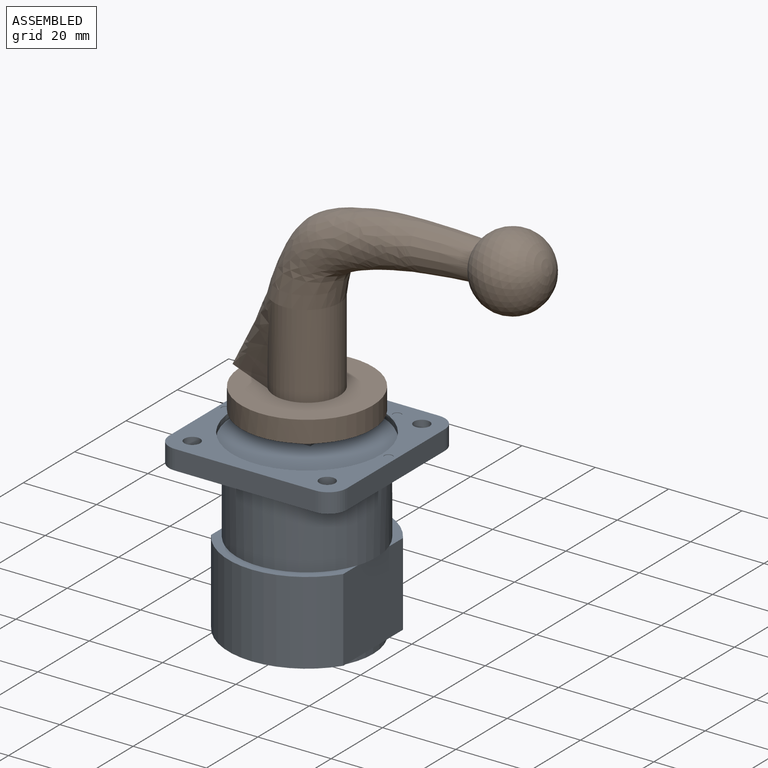
[diagram: assembled view]
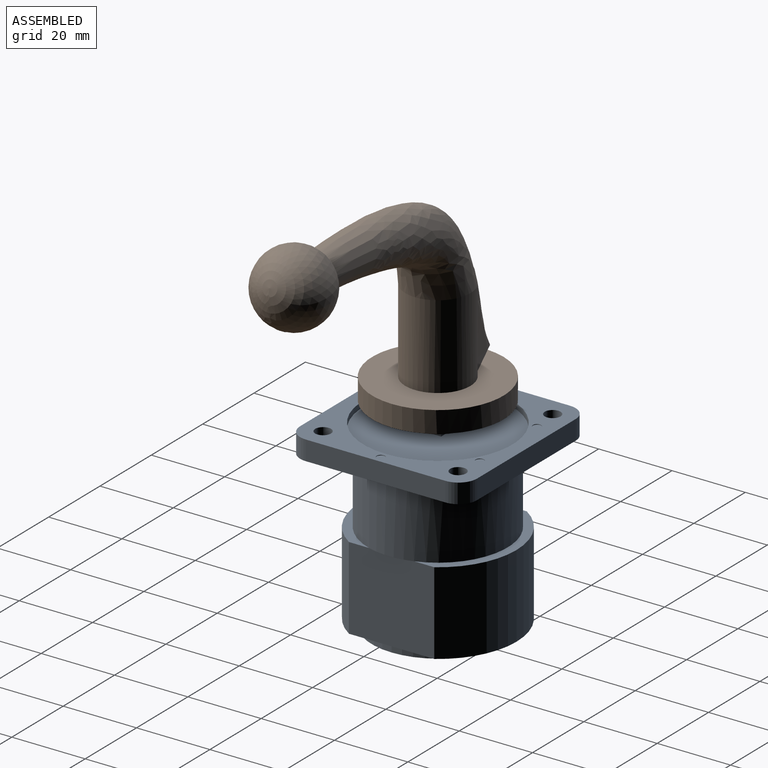
[diagram: assembled view, second angle]
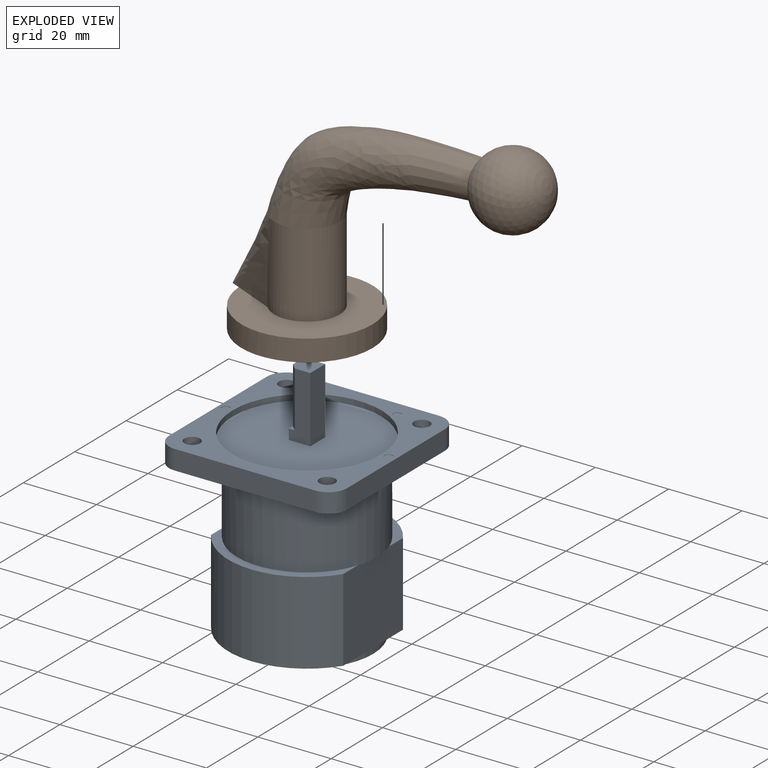
[diagram: exploded view]
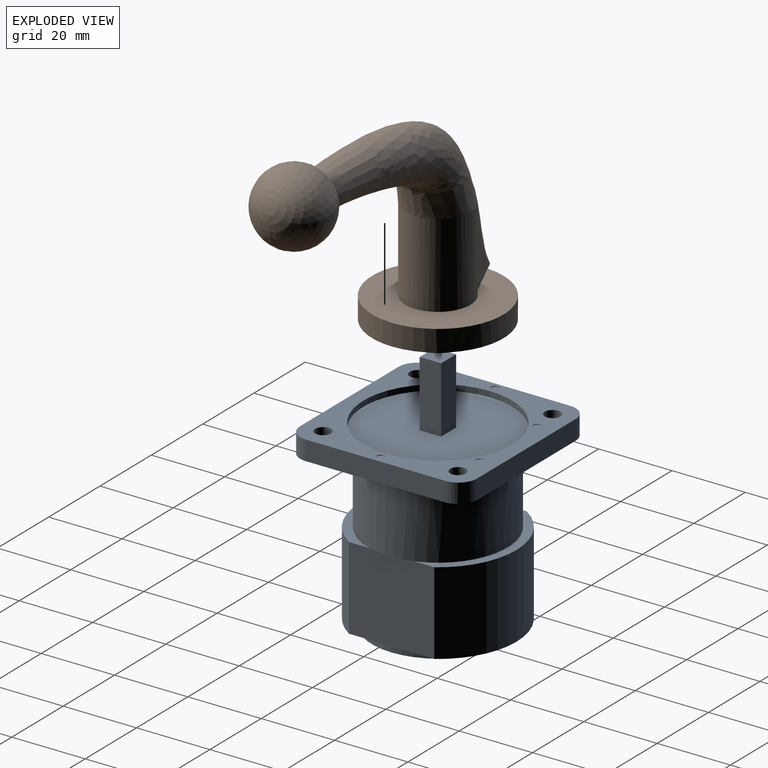
[diagram: exploded view, second angle]
ASSEMBLY  parts=2 mates=4
PART A: 48 faces, bbox 48.5x48.3x66.3 mm
  f0: plane 18.03x5.84mm, normal (0,-1,0), area 80.7mm2, adj f1,f26,f27,f29,f30,f31
  f1: plane 5.84x5.84mm, normal (0,0,1), area 32.8mm2, adj f0,f27,f28,f29,f30
  f2: plane 36.07x21.46mm, normal (0,0,-1), area 158.6mm2, adj f14,f16,f17,f20
  f3: plane 12.28x1.02mm, normal (0,0,-1), area 8.4mm2, adj f10,f14
  f4: plane 38.1x5.33mm, normal (1,0,0), area 203.2mm2, adj f8,f9,f44,f47
  f5: plane 38.35x5.33mm, normal (0,1,0), area 204.6mm2, adj f8,f9,f44,f45
  f6: plane 38.1x5.33mm, normal (-1,0,0), area 203.2mm2, adj f8,f9,f45,f46
  f7: plane 38.35x5.33mm, normal (0,-1,0), area 204.6mm2, adj f8,f9,f46,f47
  f8: plane 48.51x48.26mm, normal (0,0,1), area 947mm2, adj f4,f5,f6,f7,f25,f32,f34,f36
  f9: plane 48.51x48.26mm, normal (0,0,-1), area 1120.5mm2, adj f4,f5,f6,f7,f10,f40,f41,f42
  f10: cylinder r=19.05mm len=38.1mm, axis (0,0,1), area 2432.2mm2, adj f3,f9,f11,f12,f13
  f11: plane 12.28x1.02mm, normal (0,0,-1), area 8.4mm2, adj f10,f16
  f12: plane 36.07x15.33mm, normal (0,0,1), area 107.8mm2, adj f10,f14,f16,f17
  f13: plane 36.07x15.33mm, normal (0,0,1), area 107.8mm2, adj f10,f14,f15,f16
  f14: plane 23.28x22.61mm, normal (1,0,0), area 526.2mm2, adj f2,f3,f12,f13,f15,f17,f18
  f15: cylinder r=21.46mm len=36.07mm, axis (0,0,1), area 968.2mm2, adj f13,f14,f16,f18
  f16: plane 23.28x22.61mm, normal (-1,0,0), area 526.2mm2, adj f2,f11,f12,f13,f15,f17,f18
  f17: cylinder r=21.46mm len=36.07mm, axis (0,0,1), area 968.2mm2, adj f2,f12,f14,f16
  f18: plane 36.07x21.46mm, normal (0,0,-1), area 158.6mm2, adj f14,f15,f16,f20
  f19: cylinder r=16mm len=32mm, axis (0,0,1), area 153.2mm2, adj f21,f22
  f20: cylinder r=18.03mm len=36.07mm, axis (0,0,1), area 172.7mm2, adj f2,f18,f21
  f21: plane 36.07x36.07mm, normal (0,0,-1), area 217.3mm2, adj f19,f20
  f22: plane 32x32mm, normal (0,0,-1), area 603.3mm2, adj f19,f23
  f23: cylinder r=8mm len=16mm, axis (0,0,1), area 76.6mm2, adj f22,f24
  f24: plane 16x16mm, normal (0,0,-1), area 201.1mm2, adj f23
  f25: cylinder r=20.32mm len=40.64mm, axis (0,0,1), area 194.6mm2, adj f8,f26
  f26: plane 40.64x40.64mm, normal (0,0,1), area 1263mm2, adj f0,f25,f27,f28,f29
  f27: plane 18.03x5.84mm, normal (1,0,0), area 105.4mm2, adj f0,f1,f26,f28
  f28: plane 18.03x5.84mm, normal (0,1,0), area 105.4mm2, adj f1,f26,f27,f29
  f29: plane 18.03x5.84mm, normal (-1,0,0), area 80.7mm2, adj f0,f1,f26,f28,f30,f31
  f30: plane 15.24x1.62mm, normal (-0.71,-0.71,0), area 34.8mm2, adj f0,f1,f29,f31
  f31: plane 1.62x1.62mm, normal (0,0,1), area 1.3mm2, adj f0,f29,f30
  f32: cylinder r=1.14mm len=2.29mm, axis (0,0,1), area 0.9mm2, adj f8,f33
  f33: plane 2.29x2.29mm, normal (0,0,1), area 4.1mm2, adj f32
  f34: cylinder r=1.14mm len=2.29mm, axis (0,0,1), area 0.9mm2, adj f8,f35
  f35: plane 2.29x2.29mm, normal (0,0,1), area 4.1mm2, adj f34
  f36: cylinder r=1.14mm len=2.29mm, axis (0,0,1), area 0.9mm2, adj f8,f37
  f37: plane 2.29x2.29mm, normal (0,0,1), area 4.1mm2, adj f36
  f38: cylinder r=1.14mm len=2.29mm, axis (0,0,1), area 0.9mm2, adj f8,f39
  f39: plane 2.29x2.29mm, normal (0,0,1), area 4.1mm2, adj f38
  f40: cylinder r=2.16mm len=5.33mm, axis (0,0,1), area 72.4mm2, adj f8,f9
  f41: cylinder r=2.16mm len=5.33mm, axis (0,0,1), area 72.4mm2, adj f8,f9
  f42: cylinder r=2.16mm len=5.33mm, axis (0,0,1), area 72.4mm2, adj f8,f9
  f43: cylinder r=2.16mm len=5.33mm, axis (0,0,1), area 72.4mm2, adj f8,f9
  f44: cylinder r=5.08mm len=5.33mm, axis (0,0,1), area 42.6mm2, adj f4,f5,f8,f9
  f45: cylinder r=5.08mm len=5.33mm, axis (0,0,-1), area 42.6mm2, adj f5,f6,f8,f9
  f46: cylinder r=5.08mm len=5.33mm, axis (0,0,1), area 42.6mm2, adj f6,f7,f8,f9
  f47: cylinder r=5.08mm len=5.33mm, axis (0,0,-1), area 42.6mm2, adj f4,f7,f8,f9
PART B: 17 faces, bbox 86.6x35.8x63.6 mm
  f0: plane 17.78x17.78mm, normal (0,0,-1), area 212.4mm2, adj f2,f11,f12,f13,f14,f15
  f1: cylinder r=8.89mm len=22.86mm, axis (0,0,-1), area 934.6mm2, adj f5,f6,f8,f10
  f2: cylinder r=8.89mm len=17.78mm, axis (0,0,-1), area 241.2mm2, adj f0,f4
  f3: cylinder r=17.91mm len=35.81mm, axis (0,0,1), area 657.3mm2, adj f4,f5,f9
  f4: plane 35.81x35.81mm, normal (0,0,-1), area 759.1mm2, adj f2,f3
  f5: plane 35.81x35.78mm, normal (0,0,1), area 698mm2, adj f1,f3,f8,f10
  f6: bspline ~64.98x26.15mm, area 2479.7mm2, adj f1,f7,f8,f10
  f7: sphere r=10.16mm, area 1212.7mm2, adj f6
  f8: bspline ~22.86x22.3mm, area 269.8mm2, adj f1,f5,f6,f9,f10
  f9: plane 2.45x2.14mm, normal (0,0,-1), area 2.6mm2, adj f3,f8,f10
  f10: bspline ~22.86x22.3mm, area 269.8mm2, adj f1,f5,f6,f8,f9
  f11: plane 15.24x6.1mm, normal (-1,0,0), area 92.9mm2, adj f0,f12,f15,f16
  f12: plane 15.24x4.48mm, normal (0,1,0), area 68.3mm2, adj f0,f11,f13,f16
  f13: plane 15.24x1.62mm, normal (0.71,0.71,0), area 34.8mm2, adj f0,f12,f14,f16
  f14: plane 15.24x4.48mm, normal (1,0,0), area 68.3mm2, adj f0,f13,f15,f16
  f15: plane 15.24x6.1mm, normal (0,-1,0), area 92.9mm2, adj f0,f11,f14,f16
  f16: plane 6.1x6.1mm, normal (0,0,-1), area 35.9mm2, adj f11,f12,f13,f14,f15
PLACE A t=(0.73,6.7,12.18)mm fixed
PLACE B t=(0.73,6.7,18.78)mm
MATE cylindrical A.f10 <-> B.f3  axis (0,0,1) through (0.73,6.7,-8.14)mm
MATE parallel A.f27 <-> B.f11  axis (1,0,0) through (3.65,6.7,25)mm
MATE planar A.f31 <-> B.f0  axis (0,0,1) through (-1.65,4.32,18.78)mm
MATE parallel B.f15 <-> A.f28  axis (0,-1,0) through (0.73,9.75,26.4)mm
